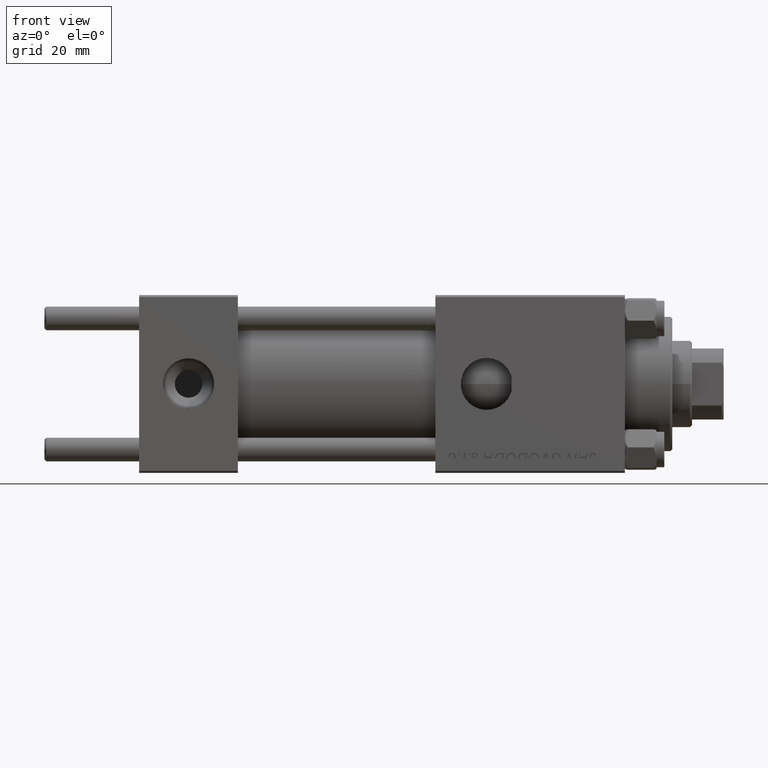
[diagram: clean part render]
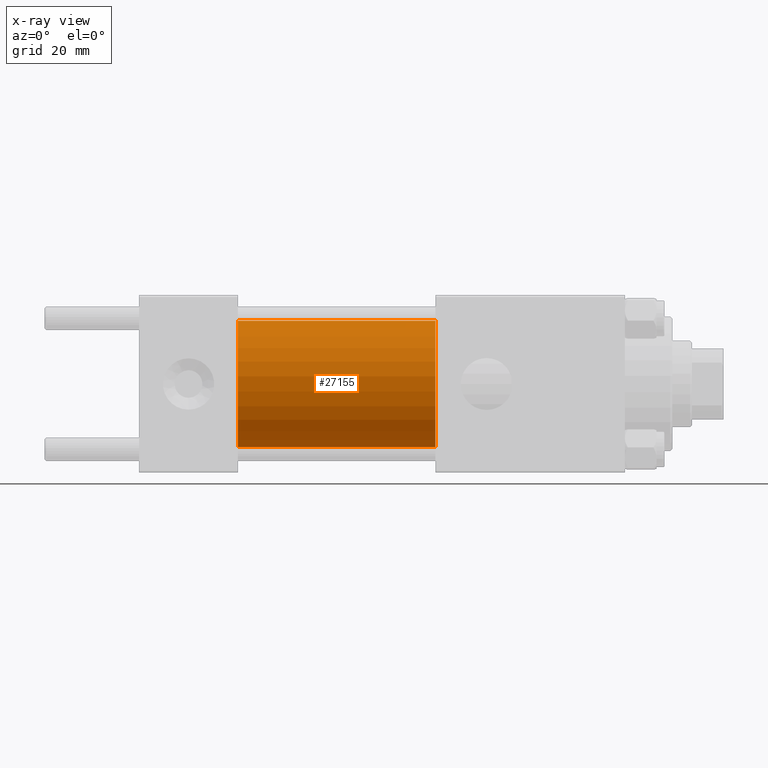
[diagram: x-ray — body ghosted, one internal face saturated and labeled with its STEP entity id]
A machine part, front view, then the same camera in x-ray: the body is ghosted and one INTERNAL B-rep face — a face not visible from any outside direction — is saturated and labeled: STEP entity #27155.
In plain terms, the highlighted cylindrical surface (partial cylindrical patch) has radius 16 mm, axis along (-1, -0, -0).
Its self-contained STEP definition (entity closure, byte-faithful):
#469 = CARTESIAN_POINT ( 'NONE',  ( 75.00000000000001421, 0.000000000000000000, 0.000000000000000000 ) ) ;
#2673 = FACE_OUTER_BOUND ( 'NONE', #10954, .T. ) ;
#5960 = CARTESIAN_POINT ( 'NONE',  ( 75.00000000000001421, 0.000000000000000000, 16.00000000000000000 ) ) ;
#6589 = CARTESIAN_POINT ( 'NONE',  ( 75.00000000000001421, 1.959434878635765131E-15, -16.00000000000000000 ) ) ;
#8898 = CARTESIAN_POINT ( 'NONE',  ( 75.00000000000001421, 0.000000000000000000, 16.00000000000000000 ) ) ;
#10813 = CARTESIAN_POINT ( 'NONE',  ( 75.00000000000001421, 0.000000000000000000, 0.000000000000000000 ) ) ;
#10954 = EDGE_LOOP ( 'NONE', ( #34698, #49520, #16462, #50417 ) ) ;
#11795 = DIRECTION ( 'NONE',  ( 0.000000000000000000, 0.000000000000000000, -1.000000000000000000 ) ) ;
#16462 = ORIENTED_EDGE ( 'NONE', *, *, #49429, .F. ) ;
#18323 = EDGE_CURVE ( 'NONE', #45561, #39274, #39169, .T. ) ;
#21822 = VERTEX_POINT ( 'NONE', #5960 ) ;
#21893 = VECTOR ( 'NONE', #27079, 1000.000000000000000 ) ;
#22077 = CIRCLE ( 'NONE', #38866, 16.00000000000000000 ) ;
#23259 = EDGE_CURVE ( 'NONE', #21822, #45561, #22077, .T. ) ;
#23838 = VERTEX_POINT ( 'NONE', #32671 ) ;
#24711 = CIRCLE ( 'NONE', #35581, 16.00000000000000000 ) ;
#25453 = LINE ( 'NONE', #8898, #33380 ) ;
#25462 = EDGE_CURVE ( 'NONE', #21822, #23838, #25453, .T. ) ;
#27079 = DIRECTION ( 'NONE',  ( -1.000000000000000000, -0.000000000000000000, -0.000000000000000000 ) ) ;
#27155 = ADVANCED_FACE ( 'NONE', ( #2673 ), #46843, .F. ) ;
#28874 = DIRECTION ( 'NONE',  ( -1.000000000000000000, -0.000000000000000000, -0.000000000000000000 ) ) ;
#32671 = CARTESIAN_POINT ( 'NONE',  ( 25.00000000000000000, 0.000000000000000000, 16.00000000000000000 ) ) ;
#33380 = VECTOR ( 'NONE', #28874, 1000.000000000000000 ) ;
#34698 = ORIENTED_EDGE ( 'NONE', *, *, #23259, .T. ) ;
#35581 = AXIS2_PLACEMENT_3D ( 'NONE', #50304, #42911, #46615 ) ;
#38866 = AXIS2_PLACEMENT_3D ( 'NONE', #469, #52013, #11795 ) ;
#38986 = CARTESIAN_POINT ( 'NONE',  ( 75.00000000000001421, 1.959434878635765131E-15, -16.00000000000000000 ) ) ;
#39169 = LINE ( 'NONE', #6589, #21893 ) ;
#39274 = VERTEX_POINT ( 'NONE', #43513 ) ;
#42911 = DIRECTION ( 'NONE',  ( 1.000000000000000000, 0.000000000000000000, 0.000000000000000000 ) ) ;
#43513 = CARTESIAN_POINT ( 'NONE',  ( 25.00000000000000000, 1.959434878635765131E-15, -16.00000000000000000 ) ) ;
#45561 = VERTEX_POINT ( 'NONE', #38986 ) ;
#46016 = AXIS2_PLACEMENT_3D ( 'NONE', #10813, #51035, #51296 ) ;
#46615 = DIRECTION ( 'NONE',  ( 0.000000000000000000, 0.000000000000000000, -1.000000000000000000 ) ) ;
#46843 = CYLINDRICAL_SURFACE ( 'NONE', #46016, 16.00000000000000000 ) ;
#49429 = EDGE_CURVE ( 'NONE', #23838, #39274, #24711, .T. ) ;
#49520 = ORIENTED_EDGE ( 'NONE', *, *, #18323, .T. ) ;
#50304 = CARTESIAN_POINT ( 'NONE',  ( 25.00000000000000000, 0.000000000000000000, 0.000000000000000000 ) ) ;
#50417 = ORIENTED_EDGE ( 'NONE', *, *, #25462, .F. ) ;
#51035 = DIRECTION ( 'NONE',  ( -1.000000000000000000, -0.000000000000000000, -0.000000000000000000 ) ) ;
#51296 = DIRECTION ( 'NONE',  ( 0.000000000000000000, 0.000000000000000000, 1.000000000000000000 ) ) ;
#52013 = DIRECTION ( 'NONE',  ( 1.000000000000000000, 0.000000000000000000, 0.000000000000000000 ) ) ;